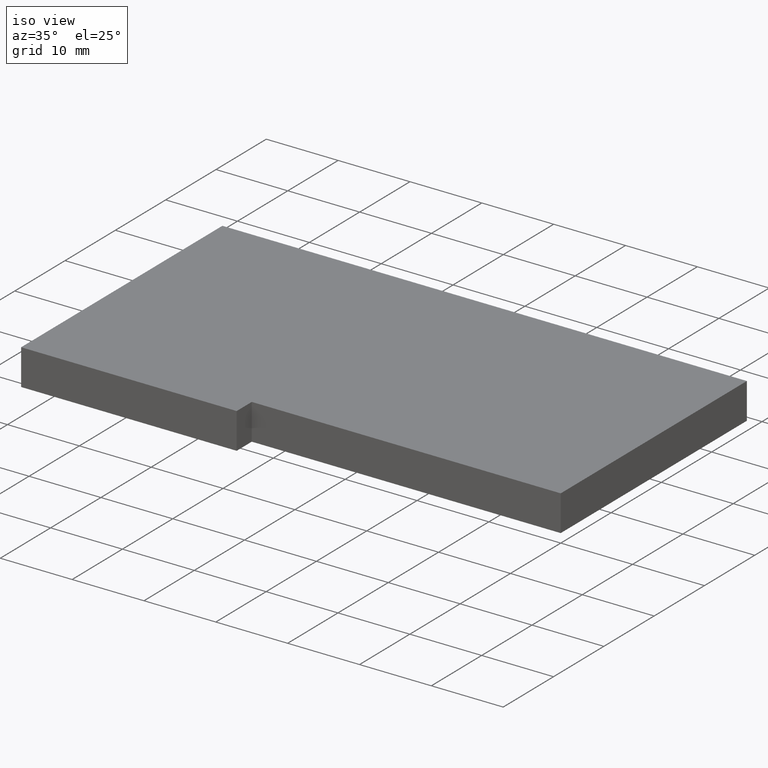
[diagram: clean part render]
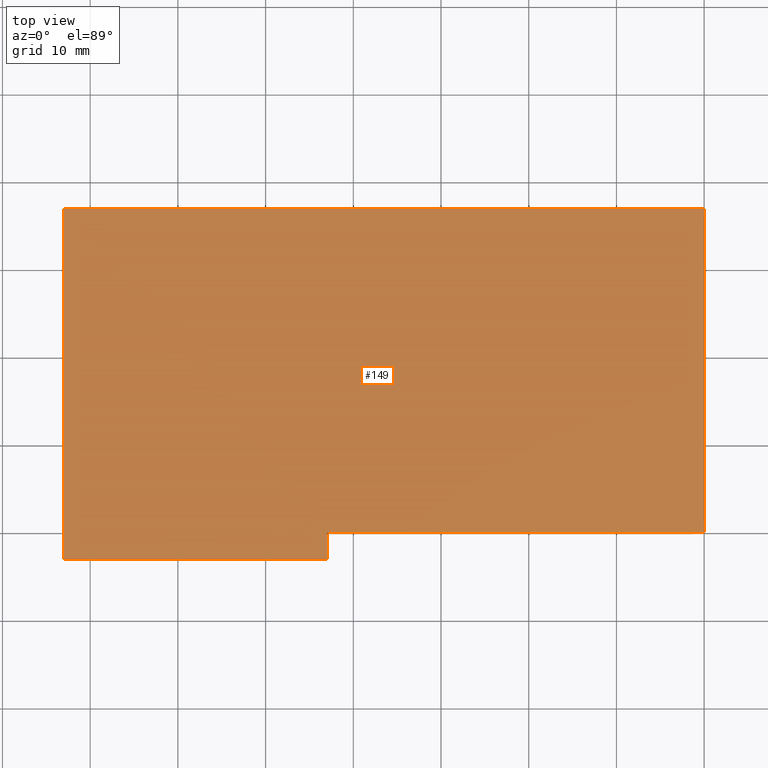
[diagram: tour spotlight — one face highlighted and labeled with its STEP entity id]
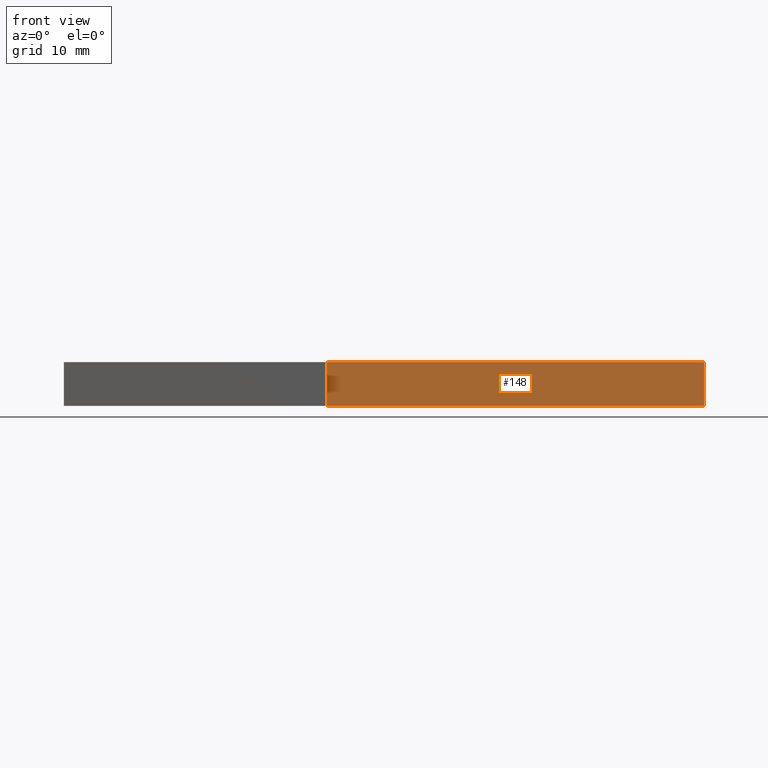
[diagram: tour spotlight — one face highlighted and labeled with its STEP entity id]
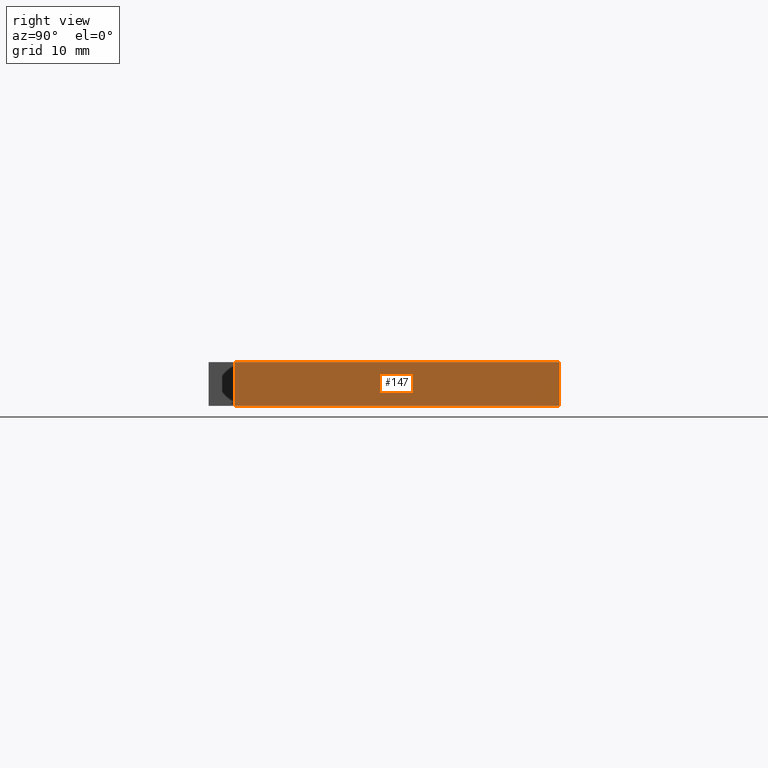
[diagram: tour spotlight — one face highlighted and labeled with its STEP entity id]
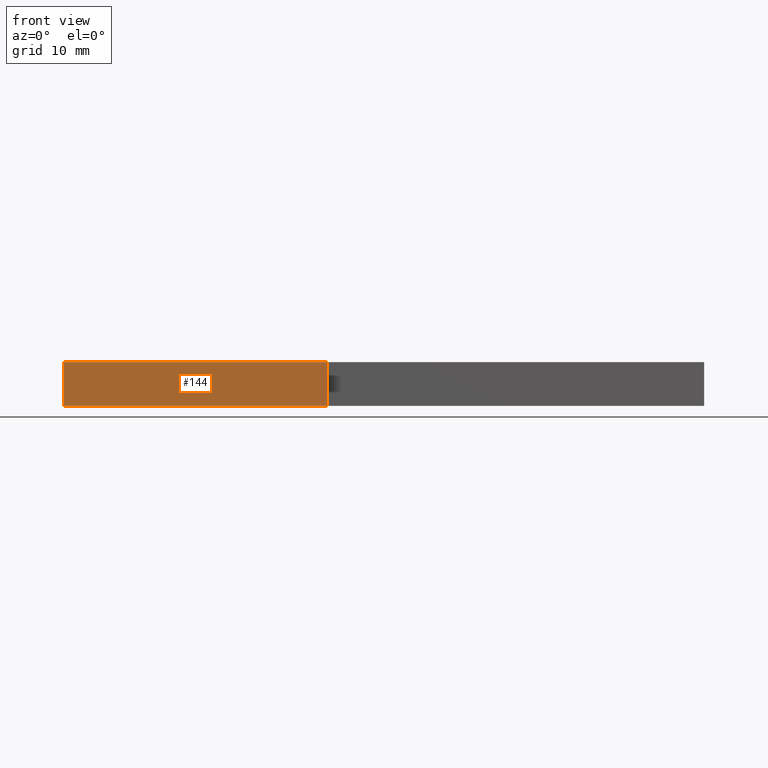
[diagram: tour spotlight — one face highlighted and labeled with its STEP entity id]
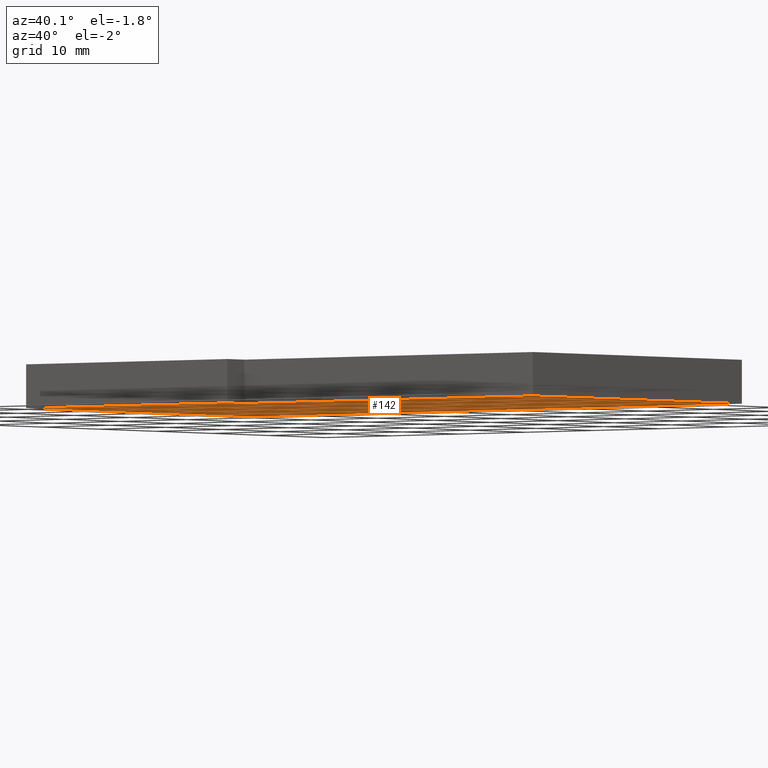
[diagram: tour spotlight — one face highlighted and labeled with its STEP entity id]
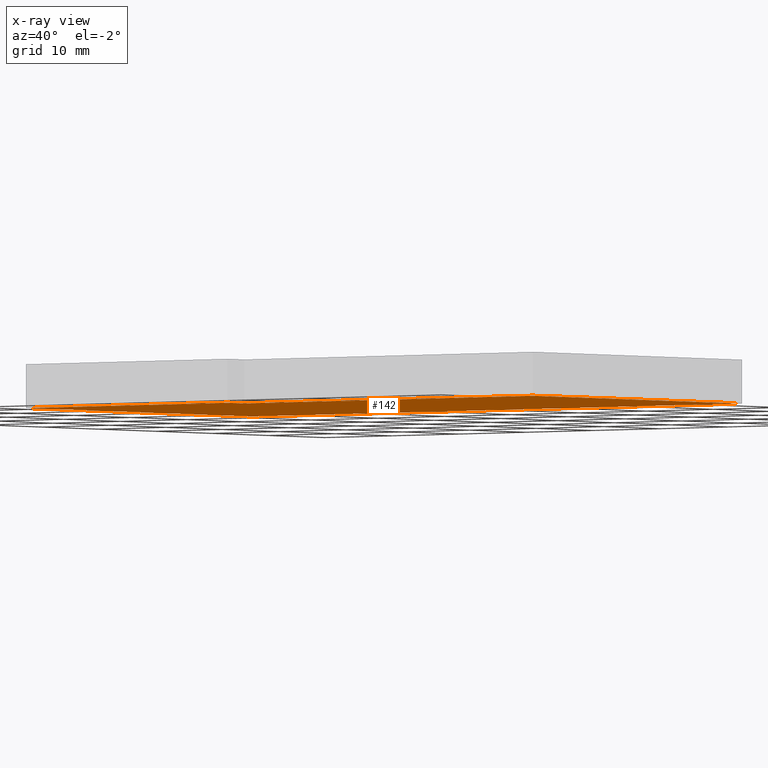
[diagram: x-ray of the same camera — body ghosted, this tour face saturated]
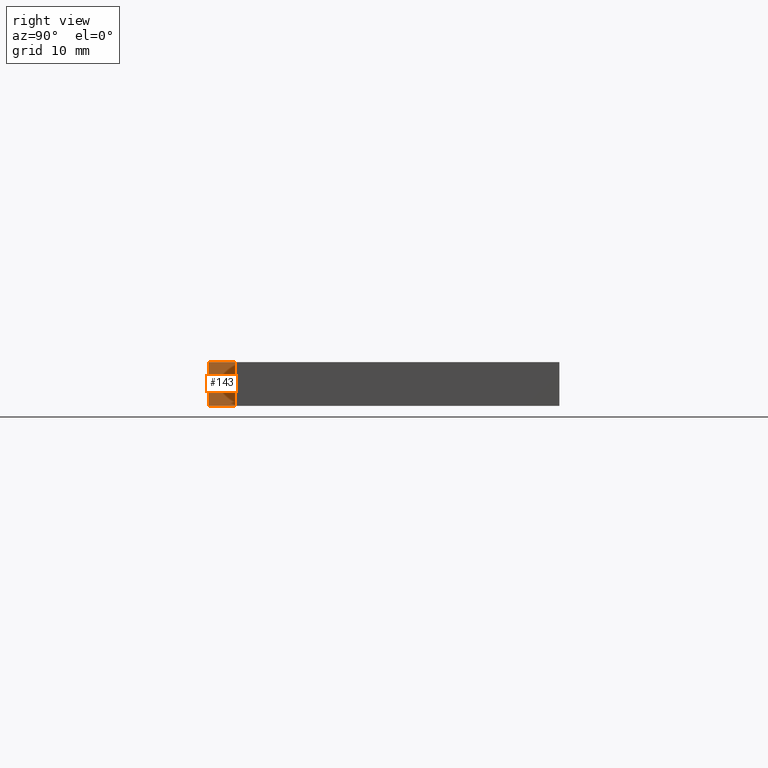
[diagram: tour spotlight — one face highlighted and labeled with its STEP entity id]
A machine part: a face-by-face anatomy tour. The part has 8 B-rep faces; the first image is the clean iso view, then the 6 largest visible faces are spotlighted one at a time (largest first), each with its STEP entity span.

Face 1 — top view, entity #149. In plain terms, the highlighted planar face has unit normal (0, 0, 1).
Definition (entity closure, byte-faithful):
#23=FACE_OUTER_BOUND('',#31,.T.);
#31=EDGE_LOOP('',(#128,#129,#130,#131,#132,#133));
#38=LINE('',#234,#56);
#41=LINE('',#239,#59);
#43=LINE('',#243,#61);
#45=LINE('',#247,#63);
#47=LINE('',#251,#65);
#49=LINE('',#254,#67);
#56=VECTOR('',#193,10.);
#59=VECTOR('',#198,10.);
#61=VECTOR('',#202,10.);
#63=VECTOR('',#206,10.);
#65=VECTOR('',#210,10.);
#67=VECTOR('',#214,10.);
#74=VERTEX_POINT('',#232);
#75=VERTEX_POINT('',#233);
#76=VERTEX_POINT('',#238);
#77=VERTEX_POINT('',#242);
#78=VERTEX_POINT('',#246);
#79=VERTEX_POINT('',#250);
#86=EDGE_CURVE('',#74,#75,#38,.T.);
#89=EDGE_CURVE('',#75,#76,#41,.T.);
#91=EDGE_CURVE('',#76,#77,#43,.T.);
#93=EDGE_CURVE('',#77,#78,#45,.T.);
#95=EDGE_CURVE('',#78,#79,#47,.T.);
#97=EDGE_CURVE('',#79,#74,#49,.T.);
#128=ORIENTED_EDGE('',*,*,#86,.F.);
#129=ORIENTED_EDGE('',*,*,#97,.F.);
#130=ORIENTED_EDGE('',*,*,#95,.F.);
#131=ORIENTED_EDGE('',*,*,#93,.F.);
#132=ORIENTED_EDGE('',*,*,#91,.F.);
#133=ORIENTED_EDGE('',*,*,#89,.F.);
#141=PLANE('',#180);
#149=ADVANCED_FACE('',(#23),#141,.T.);
#180=AXIS2_PLACEMENT_3D('',#255,#215,#216);
#193=DIRECTION('',(2.96059473233375E-15,-1.,0.));
#198=DIRECTION('',(-1.,-1.48029736616688E-16,0.));
#202=DIRECTION('',(-4.44089209850063E-16,1.,0.));
#206=DIRECTION('',(1.,2.433365533425E-16,0.));
#210=DIRECTION('',(3.00060276925718E-16,-1.,0.));
#214=DIRECTION('',(-1.,-1.25868308024364E-16,0.));
#215=DIRECTION('center_axis',(0.,0.,1.));
#216=DIRECTION('ref_axis',(1.,0.,0.));
#232=CARTESIAN_POINT('',(-43.,-3.19189119579733E-15,2.5));
#233=CARTESIAN_POINT('',(-43.,-3.,2.5));
#234=CARTESIAN_POINT('',(-43.,-3.19189119579733E-15,2.5));
#238=CARTESIAN_POINT('',(-73.,-3.00000000000001,2.5));
#239=CARTESIAN_POINT('',(-43.,-3.,2.5));
#242=CARTESIAN_POINT('',(-73.,37.,2.5));
#243=CARTESIAN_POINT('',(-73.,-3.00000000000001,2.5));
#246=CARTESIAN_POINT('',(-8.88178419700125E-15,37.,2.5));
#247=CARTESIAN_POINT('',(-73.,37.,2.5));
#250=CARTESIAN_POINT('',(2.22044604925031E-15,2.22044604925031E-15,2.5));
#251=CARTESIAN_POINT('',(-8.88178419700125E-15,37.,2.5));
#254=CARTESIAN_POINT('',(2.22044604925031E-15,2.22044604925031E-15,2.5));
#255=CARTESIAN_POINT('Origin',(-37.070796460177,17.570796460177,2.5));

Face 2 — front view, entity #148. In plain terms, the highlighted planar face has unit normal (0, -1, 0).
Definition (entity closure, byte-faithful):
#22=FACE_OUTER_BOUND('',#30,.T.);
#30=EDGE_LOOP('',(#124,#125,#126,#127));
#33=LINE('',#223,#51);
#40=LINE('',#236,#58);
#48=LINE('',#252,#66);
#49=LINE('',#254,#67);
#51=VECTOR('',#186,10.);
#58=VECTOR('',#195,10.);
#66=VECTOR('',#211,10.);
#67=VECTOR('',#214,10.);
#68=VERTEX_POINT('',#219);
#70=VERTEX_POINT('',#222);
#74=VERTEX_POINT('',#232);
#79=VERTEX_POINT('',#250);
#81=EDGE_CURVE('',#70,#68,#33,.T.);
#88=EDGE_CURVE('',#74,#70,#40,.T.);
#96=EDGE_CURVE('',#68,#79,#48,.T.);
#97=EDGE_CURVE('',#79,#74,#49,.T.);
#124=ORIENTED_EDGE('',*,*,#97,.T.);
#125=ORIENTED_EDGE('',*,*,#88,.T.);
#126=ORIENTED_EDGE('',*,*,#81,.T.);
#127=ORIENTED_EDGE('',*,*,#96,.T.);
#140=PLANE('',#179);
#148=ADVANCED_FACE('',(#22),#140,.T.);
#179=AXIS2_PLACEMENT_3D('',#253,#212,#213);
#186=DIRECTION('',(1.,1.25868308024364E-16,0.));
#195=DIRECTION('',(0.,0.,-1.));
#211=DIRECTION('',(0.,0.,1.));
#212=DIRECTION('center_axis',(1.25868308024364E-16,-1.,0.));
#213=DIRECTION('ref_axis',(0.,0.,-1.));
#214=DIRECTION('',(-1.,-1.25868308024364E-16,0.));
#219=CARTESIAN_POINT('',(2.22044604925031E-15,2.22044604925031E-15,-2.5));
#222=CARTESIAN_POINT('',(-43.,-3.19189119579733E-15,-2.5));
#223=CARTESIAN_POINT('',(2.22044604925031E-15,2.22044604925031E-15,-2.5));
#232=CARTESIAN_POINT('',(-43.,-3.19189119579733E-15,2.5));
#236=CARTESIAN_POINT('',(-43.,-3.19189119579733E-15,0.));
#250=CARTESIAN_POINT('',(2.22044604925031E-15,2.22044604925031E-15,2.5));
#252=CARTESIAN_POINT('',(2.22044604925031E-15,2.22044604925031E-15,0.));
#253=CARTESIAN_POINT('Origin',(2.22044604925031E-15,2.22044604925031E-15,
0.));
#254=CARTESIAN_POINT('',(2.22044604925031E-15,2.22044604925031E-15,2.5));

Face 3 — right view, entity #147. In plain terms, the highlighted planar face has unit normal (1, 0, 0).
Definition (entity closure, byte-faithful):
#21=FACE_OUTER_BOUND('',#29,.T.);
#29=EDGE_LOOP('',(#120,#121,#122,#123));
#32=LINE('',#221,#50);
#46=LINE('',#248,#64);
#47=LINE('',#251,#65);
#48=LINE('',#252,#66);
#50=VECTOR('',#185,10.);
#64=VECTOR('',#207,10.);
#65=VECTOR('',#210,10.);
#66=VECTOR('',#211,10.);
#68=VERTEX_POINT('',#219);
#69=VERTEX_POINT('',#220);
#78=VERTEX_POINT('',#246);
#79=VERTEX_POINT('',#250);
#80=EDGE_CURVE('',#68,#69,#32,.T.);
#94=EDGE_CURVE('',#78,#69,#46,.T.);
#95=EDGE_CURVE('',#78,#79,#47,.T.);
#96=EDGE_CURVE('',#68,#79,#48,.T.);
#120=ORIENTED_EDGE('',*,*,#95,.T.);
#121=ORIENTED_EDGE('',*,*,#96,.F.);
#122=ORIENTED_EDGE('',*,*,#80,.T.);
#123=ORIENTED_EDGE('',*,*,#94,.F.);
#139=PLANE('',#178);
#147=ADVANCED_FACE('',(#21),#139,.T.);
#178=AXIS2_PLACEMENT_3D('',#249,#208,#209);
#185=DIRECTION('',(-3.00060276925718E-16,1.,0.));
#207=DIRECTION('',(0.,0.,-1.));
#208=DIRECTION('center_axis',(1.,3.00060276925718E-16,0.));
#209=DIRECTION('ref_axis',(0.,0.,-1.));
#210=DIRECTION('',(3.00060276925718E-16,-1.,0.));
#211=DIRECTION('',(0.,0.,1.));
#219=CARTESIAN_POINT('',(2.22044604925031E-15,2.22044604925031E-15,-2.5));
#220=CARTESIAN_POINT('',(-8.88178419700125E-15,37.,-2.5));
#221=CARTESIAN_POINT('',(-8.88178419700125E-15,37.,-2.5));
#246=CARTESIAN_POINT('',(-8.88178419700125E-15,37.,2.5));
#248=CARTESIAN_POINT('',(-8.88178419700125E-15,37.,0.));
#249=CARTESIAN_POINT('Origin',(-8.88178419700125E-15,37.,0.));
#250=CARTESIAN_POINT('',(2.22044604925031E-15,2.22044604925031E-15,2.5));
#251=CARTESIAN_POINT('',(-8.88178419700125E-15,37.,2.5));
#252=CARTESIAN_POINT('',(2.22044604925031E-15,2.22044604925031E-15,0.));

Face 4 — front view, entity #144. In plain terms, the highlighted planar face has unit normal (0, -1, 0).
Definition (entity closure, byte-faithful):
#18=FACE_OUTER_BOUND('',#26,.T.);
#26=EDGE_LOOP('',(#108,#109,#110,#111));
#35=LINE('',#227,#53);
#39=LINE('',#235,#57);
#41=LINE('',#239,#59);
#42=LINE('',#240,#60);
#53=VECTOR('',#188,10.);
#57=VECTOR('',#194,10.);
#59=VECTOR('',#198,10.);
#60=VECTOR('',#199,10.);
#71=VERTEX_POINT('',#224);
#72=VERTEX_POINT('',#226);
#75=VERTEX_POINT('',#233);
#76=VERTEX_POINT('',#238);
#83=EDGE_CURVE('',#72,#71,#35,.T.);
#87=EDGE_CURVE('',#75,#71,#39,.T.);
#89=EDGE_CURVE('',#75,#76,#41,.T.);
#90=EDGE_CURVE('',#76,#72,#42,.T.);
#108=ORIENTED_EDGE('',*,*,#89,.T.);
#109=ORIENTED_EDGE('',*,*,#90,.T.);
#110=ORIENTED_EDGE('',*,*,#83,.T.);
#111=ORIENTED_EDGE('',*,*,#87,.F.);
#136=PLANE('',#175);
#144=ADVANCED_FACE('',(#18),#136,.T.);
#175=AXIS2_PLACEMENT_3D('',#237,#196,#197);
#188=DIRECTION('',(1.,1.48029736616688E-16,0.));
#194=DIRECTION('',(0.,0.,-1.));
#196=DIRECTION('center_axis',(1.48029736616688E-16,-1.,0.));
#197=DIRECTION('ref_axis',(0.,0.,-1.));
#198=DIRECTION('',(-1.,-1.48029736616688E-16,0.));
#199=DIRECTION('',(0.,0.,-1.));
#224=CARTESIAN_POINT('',(-43.,-3.,-2.5));
#226=CARTESIAN_POINT('',(-73.,-3.00000000000001,-2.5));
#227=CARTESIAN_POINT('',(-43.,-3.,-2.5));
#233=CARTESIAN_POINT('',(-43.,-3.,2.5));
#235=CARTESIAN_POINT('',(-43.,-3.,0.));
#237=CARTESIAN_POINT('Origin',(-43.,-3.,0.));
#238=CARTESIAN_POINT('',(-73.,-3.00000000000001,2.5));
#239=CARTESIAN_POINT('',(-43.,-3.,2.5));
#240=CARTESIAN_POINT('',(-73.,-3.00000000000001,0.));

Face 5 — auxiliary view, entity #142. An x-ray twin of the same camera follows (body ghosted, this face saturated) — the face is partly hidden behind the body. In plain terms, the highlighted planar face has unit normal (0, 0, 1).
Definition (entity closure, byte-faithful):
#16=FACE_OUTER_BOUND('',#24,.T.);
#24=EDGE_LOOP('',(#98,#99,#100,#101,#102,#103));
#32=LINE('',#221,#50);
#33=LINE('',#223,#51);
#34=LINE('',#225,#52);
#35=LINE('',#227,#53);
#36=LINE('',#229,#54);
#37=LINE('',#230,#55);
#50=VECTOR('',#185,10.);
#51=VECTOR('',#186,10.);
#52=VECTOR('',#187,10.);
#53=VECTOR('',#188,10.);
#54=VECTOR('',#189,10.);
#55=VECTOR('',#190,10.);
#68=VERTEX_POINT('',#219);
#69=VERTEX_POINT('',#220);
#70=VERTEX_POINT('',#222);
#71=VERTEX_POINT('',#224);
#72=VERTEX_POINT('',#226);
#73=VERTEX_POINT('',#228);
#80=EDGE_CURVE('',#68,#69,#32,.T.);
#81=EDGE_CURVE('',#70,#68,#33,.T.);
#82=EDGE_CURVE('',#71,#70,#34,.T.);
#83=EDGE_CURVE('',#72,#71,#35,.T.);
#84=EDGE_CURVE('',#73,#72,#36,.T.);
#85=EDGE_CURVE('',#69,#73,#37,.T.);
#98=ORIENTED_EDGE('',*,*,#80,.F.);
#99=ORIENTED_EDGE('',*,*,#81,.F.);
#100=ORIENTED_EDGE('',*,*,#82,.F.);
#101=ORIENTED_EDGE('',*,*,#83,.F.);
#102=ORIENTED_EDGE('',*,*,#84,.F.);
#103=ORIENTED_EDGE('',*,*,#85,.F.);
#134=PLANE('',#173);
#142=ADVANCED_FACE('',(#16),#134,.F.);
#173=AXIS2_PLACEMENT_3D('',#218,#183,#184);
#183=DIRECTION('center_axis',(0.,0.,1.));
#184=DIRECTION('ref_axis',(1.,0.,0.));
#185=DIRECTION('',(-3.00060276925718E-16,1.,0.));
#186=DIRECTION('',(1.,1.25868308024364E-16,0.));
#187=DIRECTION('',(-2.96059473233375E-15,1.,0.));
#188=DIRECTION('',(1.,1.48029736616688E-16,0.));
#189=DIRECTION('',(4.44089209850063E-16,-1.,0.));
#190=DIRECTION('',(-1.,-2.433365533425E-16,0.));
#218=CARTESIAN_POINT('Origin',(-37.070796460177,17.570796460177,-2.5));
#219=CARTESIAN_POINT('',(2.22044604925031E-15,2.22044604925031E-15,-2.5));
#220=CARTESIAN_POINT('',(-8.88178419700125E-15,37.,-2.5));
#221=CARTESIAN_POINT('',(-8.88178419700125E-15,37.,-2.5));
#222=CARTESIAN_POINT('',(-43.,-3.19189119579733E-15,-2.5));
#223=CARTESIAN_POINT('',(2.22044604925031E-15,2.22044604925031E-15,-2.5));
#224=CARTESIAN_POINT('',(-43.,-3.,-2.5));
#225=CARTESIAN_POINT('',(-43.,-3.19189119579733E-15,-2.5));
#226=CARTESIAN_POINT('',(-73.,-3.00000000000001,-2.5));
#227=CARTESIAN_POINT('',(-43.,-3.,-2.5));
#228=CARTESIAN_POINT('',(-73.,37.,-2.5));
#229=CARTESIAN_POINT('',(-73.,-3.00000000000001,-2.5));
#230=CARTESIAN_POINT('',(-73.,37.,-2.5));

Face 6 — right view, entity #143. In plain terms, the highlighted planar face has unit normal (1, 0, 0).
Definition (entity closure, byte-faithful):
#17=FACE_OUTER_BOUND('',#25,.T.);
#25=EDGE_LOOP('',(#104,#105,#106,#107));
#34=LINE('',#225,#52);
#38=LINE('',#234,#56);
#39=LINE('',#235,#57);
#40=LINE('',#236,#58);
#52=VECTOR('',#187,10.);
#56=VECTOR('',#193,10.);
#57=VECTOR('',#194,10.);
#58=VECTOR('',#195,10.);
#70=VERTEX_POINT('',#222);
#71=VERTEX_POINT('',#224);
#74=VERTEX_POINT('',#232);
#75=VERTEX_POINT('',#233);
#82=EDGE_CURVE('',#71,#70,#34,.T.);
#86=EDGE_CURVE('',#74,#75,#38,.T.);
#87=EDGE_CURVE('',#75,#71,#39,.T.);
#88=EDGE_CURVE('',#74,#70,#40,.T.);
#104=ORIENTED_EDGE('',*,*,#86,.T.);
#105=ORIENTED_EDGE('',*,*,#87,.T.);
#106=ORIENTED_EDGE('',*,*,#82,.T.);
#107=ORIENTED_EDGE('',*,*,#88,.F.);
#135=PLANE('',#174);
#143=ADVANCED_FACE('',(#17),#135,.T.);
#174=AXIS2_PLACEMENT_3D('',#231,#191,#192);
#187=DIRECTION('',(-2.96059473233375E-15,1.,0.));
#191=DIRECTION('center_axis',(1.,2.96059473233375E-15,0.));
#192=DIRECTION('ref_axis',(0.,0.,-1.));
#193=DIRECTION('',(2.96059473233375E-15,-1.,0.));
#194=DIRECTION('',(0.,0.,-1.));
#195=DIRECTION('',(0.,0.,-1.));
#222=CARTESIAN_POINT('',(-43.,-3.19189119579733E-15,-2.5));
#224=CARTESIAN_POINT('',(-43.,-3.,-2.5));
#225=CARTESIAN_POINT('',(-43.,-3.19189119579733E-15,-2.5));
#231=CARTESIAN_POINT('Origin',(-43.,-3.19189119579733E-15,0.));
#232=CARTESIAN_POINT('',(-43.,-3.19189119579733E-15,2.5));
#233=CARTESIAN_POINT('',(-43.,-3.,2.5));
#234=CARTESIAN_POINT('',(-43.,-3.19189119579733E-15,2.5));
#235=CARTESIAN_POINT('',(-43.,-3.,0.));
#236=CARTESIAN_POINT('',(-43.,-3.19189119579733E-15,0.));